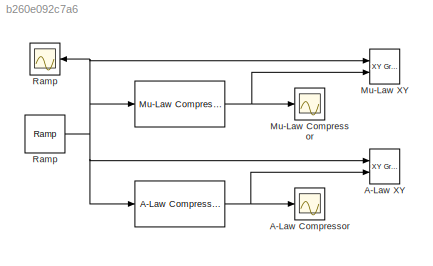
MODEL slx_b260e092c7a6
KIND model
BLOCK [Reference]    REF=commsrccod2/Mu-Law
Compressor
  Ports = [1, 1]
  SourceBlock = commsrccod2/Mu-Law\nCompressor
  SourceType = Mu-Law Compressor
  V = 1
  mu = 255
BLOCK [Reference]      REF=commsrccod2/A-Law
Compressor
  A = 87.6
  Ports = [1, 1]
  SourceBlock = commsrccod2/A-Law\nCompressor
  SourceType = A-Law Compressor
  V = 1
BLOCK [Scope] A-Law Compressor
  DataFormat = StructureWithTime
  Floating = off
  NumInputPorts = 1
  Ports = [1]
  SampleTime = 0
  SaveName = ScopeData3
  ShowLegends = off
BLOCK [Reference] A-Law XY  REF=simulink/Sinks/XY Graph
  Ports = [2]
  SourceBlock = simulink/Sinks/XY Graph
  SourceType = XY scope.
  st = -1
  xmax = 1
  xmin = -1
  ymax = 1
  ymin = -1
BLOCK [Scope] Mu-Law Compressor
  DataFormat = StructureWithTime
  Floating = off
  NumInputPorts = 1
  Ports = [1]
  SampleTime = 0
  SaveName = ScopeData1
  ShowLegends = off
BLOCK [Reference] Mu-Law XY  REF=simulink/Sinks/XY Graph
  Ports = [2]
  SourceBlock = simulink/Sinks/XY Graph
  SourceType = XY scope.
  st = -1
  xmax = 1
  xmin = -1
  ymax = 1
  ymin = -1
BLOCK [Reference] Ramp  REF=simulink/Sources/Ramp
  Ports = [0, 1]
  SourceBlock = simulink/Sources/Ramp
  SourceType = Ramp
  VectorParams1D = on
  X0 = -1
  slope = 1
  start = 0
BLOCK [Scope] Ramp 
  DataFormat = StructureWithTime
  Floating = off
  NumInputPorts = 1
  Ports = [1]
  SampleTime = 0
  ShowLegends = off
NET    :1 -> A-Law Compressor:1, A-Law XY:2
NET  :1 -> Mu-Law Compressor:1, Mu-Law XY:2
NET Ramp:1 ->    :1,  :1, A-Law XY:1, Mu-Law XY:1, Ramp :1
note: NET lines group one-source signal fan-out (src -> all destinations, sorted); 1:1 wires keep LINE
